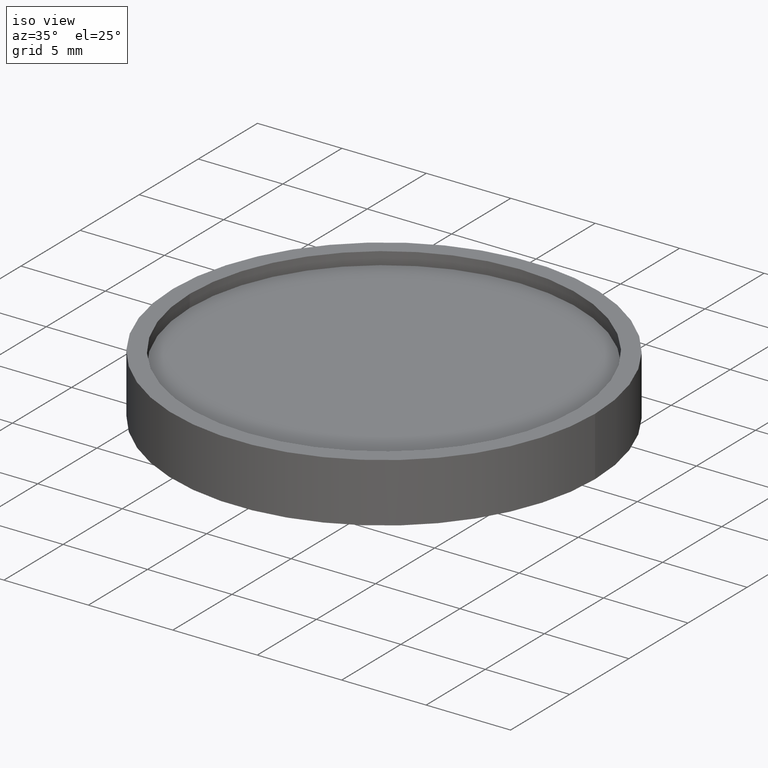
[diagram: clean part render]
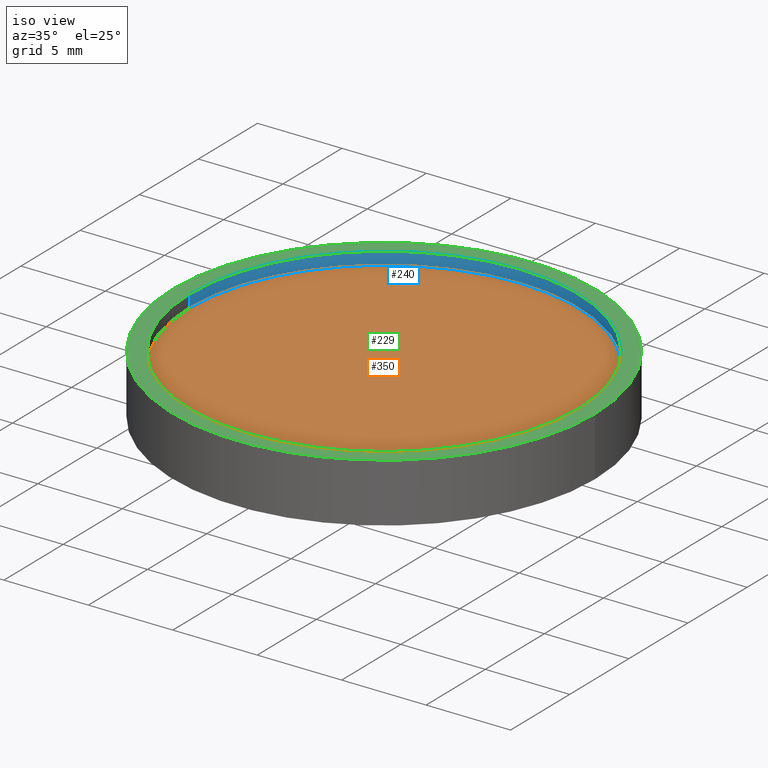
[diagram: same view with three faces highlighted in distinct colors, each labeled with its STEP entity id]
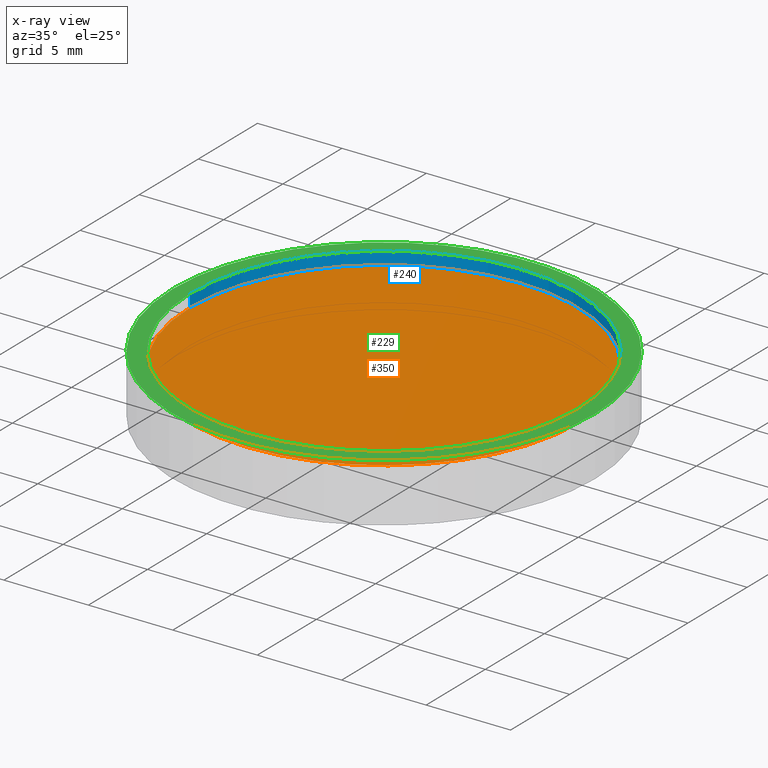
[diagram: x-ray of the same camera — body ghosted, the three highlighted faces saturated]
A machine part, iso view with three faces highlighted in distinct colors.
The next image is the same camera in x-ray (body ghosted, the three faces saturated) — at least one of them is partly hidden behind the body in this view.
Their STEP definitions:

[orange] entity #350 — the highlighted planar face has unit normal (0, 0, 1).
#22 = DIRECTION ( 'NONE',  ( 0.000000000000000000, 0.000000000000000000, 1.000000000000000000 ) ) ;
#27 = CARTESIAN_POINT ( 'NONE',  ( 0.000000000000000000, 0.000000000000000000, 2.750000000000000000 ) ) ;
#35 = AXIS2_PLACEMENT_3D ( 'NONE', #144, #364, #399 ) ;
#45 = AXIS2_PLACEMENT_3D ( 'NONE', #27, #22, #224 ) ;
#50 = VERTEX_POINT ( 'NONE', #159 ) ;
#140 = AXIS2_PLACEMENT_3D ( 'NONE', #160, #286, #384 ) ;
#144 = CARTESIAN_POINT ( 'NONE',  ( 0.000000000000000000, 0.000000000000000000, 2.750000000000000000 ) ) ;
#159 = CARTESIAN_POINT ( 'NONE',  ( -11.50000000000000000, 1.408343819019456176E-15, 2.750000000000000000 ) ) ;
#160 = CARTESIAN_POINT ( 'NONE',  ( 0.000000000000000000, 0.000000000000000000, 2.750000000000000000 ) ) ;
#161 = ORIENTED_EDGE ( 'NONE', *, *, #260, .T. ) ;
#166 = CIRCLE ( 'NONE', #35, 11.50000000000000000 ) ;
#219 = EDGE_LOOP ( 'NONE', ( #161, #281 ) ) ;
#224 = DIRECTION ( 'NONE',  ( 1.000000000000000000, 0.000000000000000000, 0.000000000000000000 ) ) ;
#227 = PLANE ( 'NONE',  #140 ) ;
#233 = CIRCLE ( 'NONE', #45, 11.50000000000000000 ) ;
#260 = EDGE_CURVE ( 'NONE', #290, #50, #166, .T. ) ;
#281 = ORIENTED_EDGE ( 'NONE', *, *, #325, .T. ) ;
#286 = DIRECTION ( 'NONE',  ( 0.000000000000000000, 0.000000000000000000, 1.000000000000000000 ) ) ;
#290 = VERTEX_POINT ( 'NONE', #305 ) ;
#305 = CARTESIAN_POINT ( 'NONE',  ( 11.50000000000000000, 0.000000000000000000, 2.750000000000000000 ) ) ;
#325 = EDGE_CURVE ( 'NONE', #50, #290, #233, .T. ) ;
#350 = ADVANCED_FACE ( 'NONE', ( #373 ), #227, .T. ) ;
#364 = DIRECTION ( 'NONE',  ( 0.000000000000000000, 0.000000000000000000, 1.000000000000000000 ) ) ;
#373 = FACE_OUTER_BOUND ( 'NONE', #219, .T. ) ;
#384 = DIRECTION ( 'NONE',  ( 1.000000000000000000, 0.000000000000000000, -0.000000000000000000 ) ) ;
#399 = DIRECTION ( 'NONE',  ( 1.000000000000000000, 0.000000000000000000, 0.000000000000000000 ) ) ;

[blue] entity #240 — the highlighted cylindrical surface (partial cylindrical patch) has radius 11.5 mm, axis along (-0, -0, 1).
#35 = AXIS2_PLACEMENT_3D ( 'NONE', #144, #364, #399 ) ;
#46 = DIRECTION ( 'NONE',  ( -0.000000000000000000, -0.000000000000000000, 1.000000000000000000 ) ) ;
#50 = VERTEX_POINT ( 'NONE', #159 ) ;
#54 = DIRECTION ( 'NONE',  ( 1.000000000000000000, 0.000000000000000000, 0.000000000000000000 ) ) ;
#73 = VECTOR ( 'NONE', #412, 1000.000000000000000 ) ;
#112 = LINE ( 'NONE', #335, #324 ) ;
#144 = CARTESIAN_POINT ( 'NONE',  ( 0.000000000000000000, 0.000000000000000000, 2.750000000000000000 ) ) ;
#155 = ORIENTED_EDGE ( 'NONE', *, *, #260, .F. ) ;
#159 = CARTESIAN_POINT ( 'NONE',  ( -11.50000000000000000, 1.408343819019456176E-15, 2.750000000000000000 ) ) ;
#166 = CIRCLE ( 'NONE', #35, 11.50000000000000000 ) ;
#178 = CARTESIAN_POINT ( 'NONE',  ( 0.000000000000000000, 0.000000000000000000, 2.750000000000000000 ) ) ;
#184 = VERTEX_POINT ( 'NONE', #385 ) ;
#209 = FACE_OUTER_BOUND ( 'NONE', #406, .T. ) ;
#217 = CARTESIAN_POINT ( 'NONE',  ( 11.50000000000000000, 0.000000000000000000, 2.750000000000000000 ) ) ;
#221 = CARTESIAN_POINT ( 'NONE',  ( 0.000000000000000000, 0.000000000000000000, 3.500000000000000000 ) ) ;
#234 = DIRECTION ( 'NONE',  ( 1.000000000000000000, 0.000000000000000000, 0.000000000000000000 ) ) ;
#240 = ADVANCED_FACE ( 'NONE', ( #209 ), #366, .F. ) ;
#252 = VERTEX_POINT ( 'NONE', #304 ) ;
#257 = LINE ( 'NONE', #217, #73 ) ;
#260 = EDGE_CURVE ( 'NONE', #290, #50, #166, .T. ) ;
#268 = EDGE_CURVE ( 'NONE', #50, #252, #112, .T. ) ;
#276 = ORIENTED_EDGE ( 'NONE', *, *, #320, .T. ) ;
#290 = VERTEX_POINT ( 'NONE', #305 ) ;
#293 = AXIS2_PLACEMENT_3D ( 'NONE', #178, #397, #234 ) ;
#303 = CIRCLE ( 'NONE', #365, 11.50000000000000000 ) ;
#304 = CARTESIAN_POINT ( 'NONE',  ( -11.50000000000000000, 1.408343819019456176E-15, 3.500000000000000000 ) ) ;
#305 = CARTESIAN_POINT ( 'NONE',  ( 11.50000000000000000, 0.000000000000000000, 2.750000000000000000 ) ) ;
#320 = EDGE_CURVE ( 'NONE', #290, #184, #257, .T. ) ;
#324 = VECTOR ( 'NONE', #46, 1000.000000000000000 ) ;
#335 = CARTESIAN_POINT ( 'NONE',  ( -11.50000000000000000, 1.408343819019456176E-15, 2.750000000000000000 ) ) ;
#351 = DIRECTION ( 'NONE',  ( 0.000000000000000000, 0.000000000000000000, 1.000000000000000000 ) ) ;
#364 = DIRECTION ( 'NONE',  ( 0.000000000000000000, 0.000000000000000000, 1.000000000000000000 ) ) ;
#365 = AXIS2_PLACEMENT_3D ( 'NONE', #221, #351, #54 ) ;
#366 = CYLINDRICAL_SURFACE ( 'NONE', #293, 11.50000000000000000 ) ;
#375 = ORIENTED_EDGE ( 'NONE', *, *, #268, .F. ) ;
#385 = CARTESIAN_POINT ( 'NONE',  ( 11.50000000000000000, 0.000000000000000000, 3.500000000000000000 ) ) ;
#388 = EDGE_CURVE ( 'NONE', #184, #252, #303, .T. ) ;
#397 = DIRECTION ( 'NONE',  ( -0.000000000000000000, -0.000000000000000000, 1.000000000000000000 ) ) ;
#399 = DIRECTION ( 'NONE',  ( 1.000000000000000000, 0.000000000000000000, 0.000000000000000000 ) ) ;
#406 = EDGE_LOOP ( 'NONE', ( #375, #155, #276, #416 ) ) ;
#412 = DIRECTION ( 'NONE',  ( -0.000000000000000000, -0.000000000000000000, 1.000000000000000000 ) ) ;
#416 = ORIENTED_EDGE ( 'NONE', *, *, #388, .T. ) ;

[green] entity #229 — the highlighted planar face has unit normal (0, 0, 1).
#11 = EDGE_CURVE ( 'NONE', #163, #415, #13, .T. ) ;
#12 = DIRECTION ( 'NONE',  ( 1.000000000000000000, 0.000000000000000000, 0.000000000000000000 ) ) ;
#13 = CIRCLE ( 'NONE', #111, 12.50000000000000000 ) ;
#47 = PLANE ( 'NONE',  #359 ) ;
#49 = FACE_OUTER_BOUND ( 'NONE', #158, .T. ) ;
#54 = DIRECTION ( 'NONE',  ( 1.000000000000000000, 0.000000000000000000, 0.000000000000000000 ) ) ;
#56 = ORIENTED_EDGE ( 'NONE', *, *, #301, .F. ) ;
#58 = ORIENTED_EDGE ( 'NONE', *, *, #388, .F. ) ;
#61 = CARTESIAN_POINT ( 'NONE',  ( 0.000000000000000000, 0.000000000000000000, 3.500000000000000000 ) ) ;
#70 = CARTESIAN_POINT ( 'NONE',  ( 12.50000000000000000, 1.530808498934191521E-15, 3.500000000000000000 ) ) ;
#82 = CARTESIAN_POINT ( 'NONE',  ( 0.000000000000000000, 0.000000000000000000, 3.500000000000000000 ) ) ;
#83 = DIRECTION ( 'NONE',  ( 1.000000000000000000, 0.000000000000000000, 0.000000000000000000 ) ) ;
#102 = CARTESIAN_POINT ( 'NONE',  ( -12.50000000000000000, 0.000000000000000000, 3.500000000000000000 ) ) ;
#111 = AXIS2_PLACEMENT_3D ( 'NONE', #61, #191, #253 ) ;
#122 = ORIENTED_EDGE ( 'NONE', *, *, #291, .T. ) ;
#132 = AXIS2_PLACEMENT_3D ( 'NONE', #146, #212, #12 ) ;
#142 = CIRCLE ( 'NONE', #132, 12.50000000000000000 ) ;
#146 = CARTESIAN_POINT ( 'NONE',  ( 0.000000000000000000, 0.000000000000000000, 3.500000000000000000 ) ) ;
#158 = EDGE_LOOP ( 'NONE', ( #409, #122 ) ) ;
#163 = VERTEX_POINT ( 'NONE', #102 ) ;
#181 = DIRECTION ( 'NONE',  ( 0.000000000000000000, 0.000000000000000000, 1.000000000000000000 ) ) ;
#184 = VERTEX_POINT ( 'NONE', #385 ) ;
#191 = DIRECTION ( 'NONE',  ( 0.000000000000000000, 0.000000000000000000, 1.000000000000000000 ) ) ;
#212 = DIRECTION ( 'NONE',  ( 0.000000000000000000, 0.000000000000000000, 1.000000000000000000 ) ) ;
#221 = CARTESIAN_POINT ( 'NONE',  ( 0.000000000000000000, 0.000000000000000000, 3.500000000000000000 ) ) ;
#229 = ADVANCED_FACE ( 'NONE', ( #403, #49 ), #47, .T. ) ;
#252 = VERTEX_POINT ( 'NONE', #304 ) ;
#253 = DIRECTION ( 'NONE',  ( 1.000000000000000000, 0.000000000000000000, 0.000000000000000000 ) ) ;
#267 = CIRCLE ( 'NONE', #361, 11.50000000000000000 ) ;
#280 = CARTESIAN_POINT ( 'NONE',  ( 0.000000000000000000, 0.000000000000000000, 3.500000000000000000 ) ) ;
#291 = EDGE_CURVE ( 'NONE', #415, #163, #142, .T. ) ;
#301 = EDGE_CURVE ( 'NONE', #252, #184, #267, .T. ) ;
#303 = CIRCLE ( 'NONE', #365, 11.50000000000000000 ) ;
#304 = CARTESIAN_POINT ( 'NONE',  ( -11.50000000000000000, 1.408343819019456176E-15, 3.500000000000000000 ) ) ;
#307 = DIRECTION ( 'NONE',  ( 0.000000000000000000, 0.000000000000000000, 1.000000000000000000 ) ) ;
#351 = DIRECTION ( 'NONE',  ( 0.000000000000000000, 0.000000000000000000, 1.000000000000000000 ) ) ;
#359 = AXIS2_PLACEMENT_3D ( 'NONE', #280, #307, #408 ) ;
#361 = AXIS2_PLACEMENT_3D ( 'NONE', #82, #181, #83 ) ;
#365 = AXIS2_PLACEMENT_3D ( 'NONE', #221, #351, #54 ) ;
#382 = EDGE_LOOP ( 'NONE', ( #58, #56 ) ) ;
#385 = CARTESIAN_POINT ( 'NONE',  ( 11.50000000000000000, 0.000000000000000000, 3.500000000000000000 ) ) ;
#388 = EDGE_CURVE ( 'NONE', #184, #252, #303, .T. ) ;
#403 = FACE_BOUND ( 'NONE', #382, .T. ) ;
#408 = DIRECTION ( 'NONE',  ( 1.000000000000000000, 0.000000000000000000, -0.000000000000000000 ) ) ;
#409 = ORIENTED_EDGE ( 'NONE', *, *, #11, .T. ) ;
#415 = VERTEX_POINT ( 'NONE', #70 ) ;